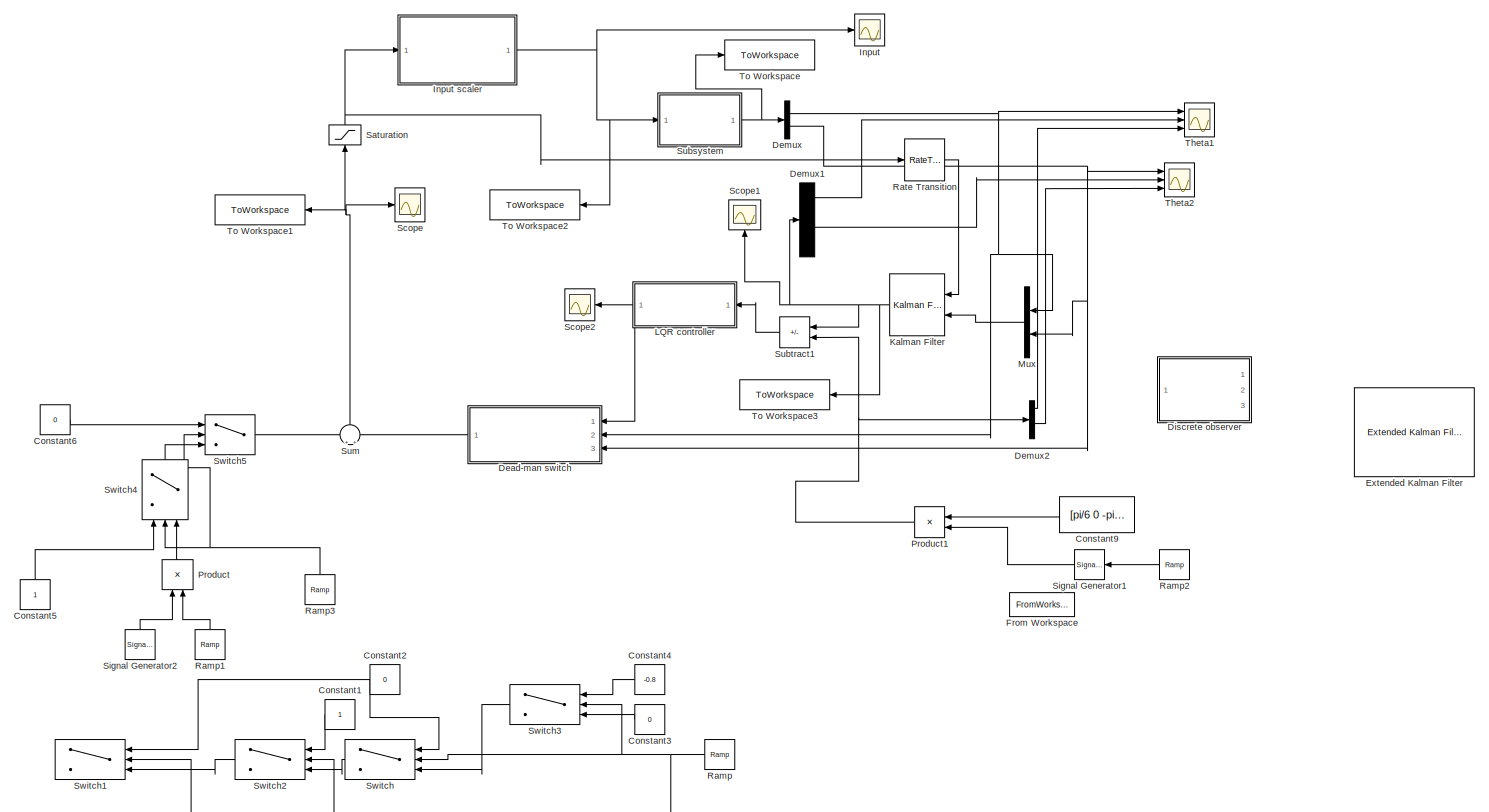
[diagram: root canvas - part 1/1, most of the canvas]
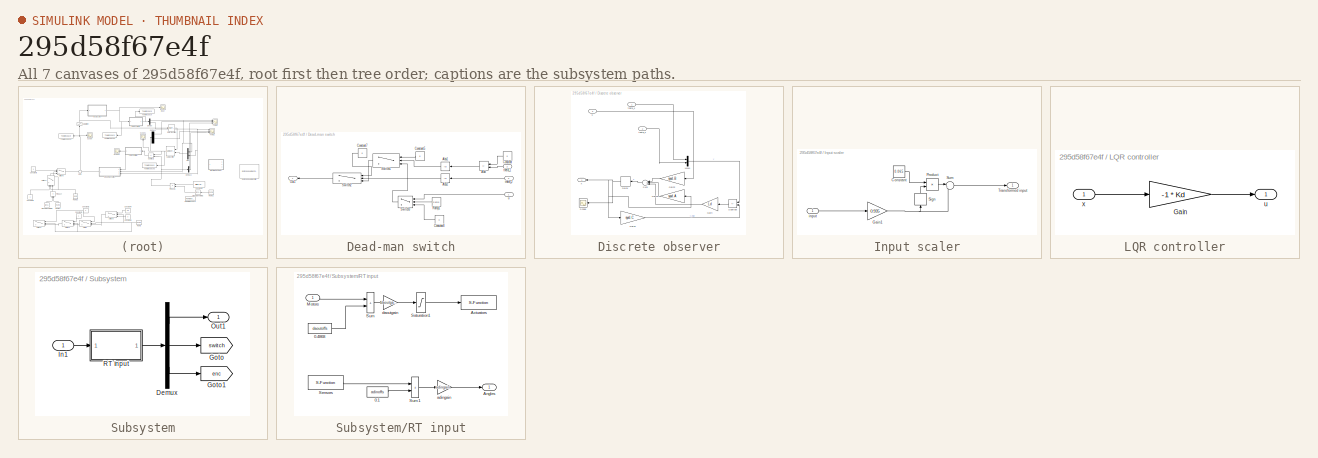
[diagram: thumbnail index - all 7 canvases of the model, root first then tree order]
MODEL slx_295d58f67e4f
KIND model
CONFIG AbsTol = auto
CONFIG EnableMultiTasking = on
CONFIG FixedStep = auto
CONFIG MaxStep = auto
CONFIG MinStep = auto
CONFIG RelTol = 1e-3
CONFIG SampleTimeConstraint = Unconstrained
CONFIG SolverName = ode45
CONFIG StartTime = 0.0
CONFIG StopTime = 30
BLOCK [Constant] Constant1
  Commented = on
  NameLocation = top
BLOCK [Constant] Constant2
  Commented = on
  NameLocation = top
  Value = 0
BLOCK [Constant] Constant3
  Commented = on
  NameLocation = top
  Value = 0
BLOCK [Constant] Constant4
  Commented = on
  NameLocation = top
  Value = -0.8
BLOCK [Constant] Constant5
  NameLocation = right
BLOCK [Constant] Constant6
  Value = 0
BLOCK [Constant] Constant9
  NameLocation = top
  Value = [pi/6 0 -pi/6 0]
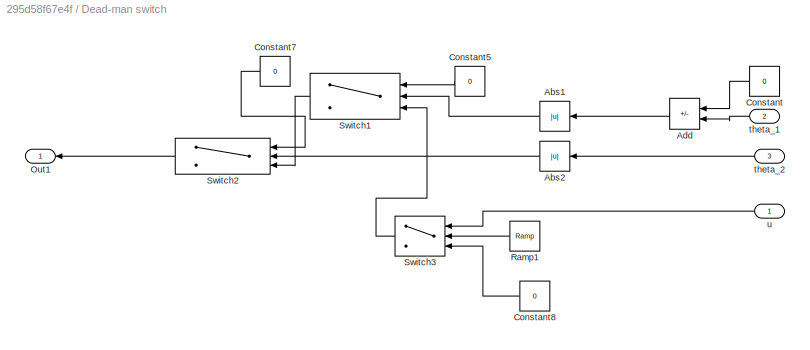
BLOCK [SubSystem] Dead-man switch
  NameLocation = top
  Ports = [3, 1]
  RequestExecContextInheritance = off
BLOCK [Abs] Dead-man switch/Abs1
  NameLocation = top
  SaturateOnIntegerOverflow = off
BLOCK [Abs] Dead-man switch/Abs2
  NameLocation = top
  SaturateOnIntegerOverflow = off
BLOCK [Sum] Dead-man switch/Add
  IconShape = rectangular
  Inputs = -+
  NameLocation = top
  Ports = [2, 1]
BLOCK [Constant] Dead-man switch/Constant
  NameLocation = top
  Value = 0
BLOCK [Constant] Dead-man switch/Constant5
  NameLocation = top
  Value = 0
BLOCK [Constant] Dead-man switch/Constant7
  NameLocation = top
  Value = 0
BLOCK [Constant] Dead-man switch/Constant8
  NameLocation = top
  Value = 0
BLOCK [Outport] Dead-man switch/Out1
  NameLocation = top
BLOCK [Reference] Dead-man switch/Ramp1  REF=simulink/Sources/Ramp
  NameLocation = top
  Ports = [0, 1]
  SourceBlock = simulink/Sources/Ramp
  SourceProductBaseCode = SL
  SourceType = Ramp
BLOCK [Switch] Dead-man switch/Switch1
  Criteria = u2 > Threshold
  InputSameDT = off
  NameLocation = top
  SaturateOnIntegerOverflow = off
  Threshold = pi/2
BLOCK [Switch] Dead-man switch/Switch2
  Criteria = u2 > Threshold
  InputSameDT = off
  NameLocation = top
  SaturateOnIntegerOverflow = off
  Threshold = pi/2
BLOCK [Switch] Dead-man switch/Switch3
  Criteria = u2 > Threshold
  InputSameDT = off
  NameLocation = top
  SaturateOnIntegerOverflow = off
  Threshold = 3
BLOCK [Inport] Dead-man switch/theta_1
  Port = 2
BLOCK [Inport] Dead-man switch/theta_2
  Port = 3
BLOCK [Inport] Dead-man switch/u
BLOCK [Demux] Demux
  Outputs = 2
  Ports = [1, 2]
BLOCK [Demux] Demux1
  Ports = [1, 4]
BLOCK [Demux] Demux2
  Ports = [1, 4]
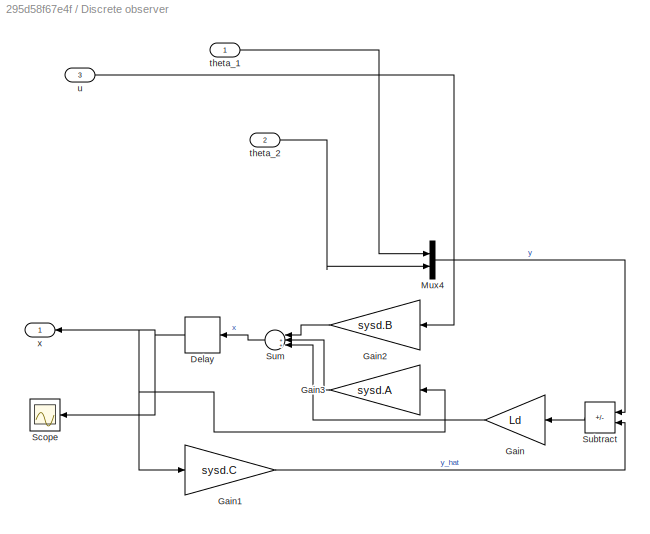
BLOCK [SubSystem] Discrete observer
  Commented = on
  NameLocation = top
  Ports = [3, 1]
  RequestExecContextInheritance = off
BLOCK [Delay] Discrete observer/Delay
  DelayLength = 1
  InputPortMap = u0
  NameLocation = top
  Ports = [1, 1]
BLOCK [Gain] Discrete observer/Gain
  Gain = Ld
  Multiplication = Matrix(K*u) (u vector)
  NameLocation = top
BLOCK [Gain] Discrete observer/Gain1
  Gain = sysd.C
  Multiplication = Matrix(K*u) (u vector)
BLOCK [Gain] Discrete observer/Gain2
  Gain = sysd.B
  Multiplication = Matrix(K*u) (u vector)
  NameLocation = top
BLOCK [Gain] Discrete observer/Gain3
  Gain = sysd.A
  Multiplication = Matrix(K*u) (u vector)
  NameLocation = top
BLOCK [Mux] Discrete observer/Mux4
  DisplayOption = bar
  Inputs = 2
  Ports = [2, 1]
BLOCK [Scope] Discrete observer/Scope
  Floating = off
  NameLocation = top
  NumInputPorts = 1
  Ports = [1]
  ScopeSpecificationString = Simulink.scopes.TimeScopeBlockCfg('CurrentConfiguration', extmgr.ConfigurationSet(extmgr.Configuration('Core','General UI',true),extmgr.Configuration('Core','Source UI',true),extmgr.Configuration('Sources','WiredSimulink',true,'DataLoggingVariableName','ScopeData3'),extmgr.Configuration('Visuals','Time Domain',true,'SerializedDisplays',{struct('MinYLimReal','-0.78894','MaxYLimReal','0.56102','YLab...<+1467ch>
BLOCK [Sum] Discrete observer/Subtract
  IconShape = rectangular
  Inputs = +-
  NameLocation = top
  Ports = [2, 1]
BLOCK [Sum] Discrete observer/Sum
  Inputs = |+++
  NameLocation = top
  Ports = [3, 1]
BLOCK [Inport] Discrete observer/theta_1
BLOCK [Inport] Discrete observer/theta_2
  Port = 2
BLOCK [Inport] Discrete observer/u
  Port = 3
BLOCK [Outport] Discrete observer/x
BLOCK [Reference] Extended Kalman Filter  REF=sharedTrackingLibrary/Extended Kalman Filter
  Commented = on
  NameLocation = top
  Ports = [2, 1]
  SourceBlock = sharedTrackingLibrary/Extended Kalman Filter
  SourceProductBaseCode = CT,DR,TF,ID,LP,NV,AR,RO,RR,UV,VE
  SourceType = Extended Kalman Filter
BLOCK [FromWorkspace] From Workspace
  NameLocation = top
  VariableName = ref
BLOCK [Scope] Input
  Floating = off
  NumInputPorts = 1
  Ports = [1]
  ScopeSpecificationString = Simulink.scopes.TimeScopeBlockCfg('CurrentConfiguration', extmgr.ConfigurationSet(extmgr.Configuration('Core','General UI',true),extmgr.Configuration('Core','Source UI',true),extmgr.Configuration('Sources','WiredSimulink',true,'DataLoggingSaveFormat','StructureWithTime','DataLoggingDecimation','1','DataLoggingDecimateData',true),extmgr.Configuration('Visuals','Time Domain',true,'SerializedDisplays...<+1772ch>
BLOCK [SubSystem] Input scaler
  Ports = [1, 1]
  RequestExecContextInheritance = off
BLOCK [Constant] Input scaler/Constant
  Value = 0.065
BLOCK [Gain] Input scaler/Gain1
  Gain = 0.935
BLOCK [Product] Input scaler/Product
  Ports = [2, 1]
BLOCK [Signum] Input scaler/Sign
  NameLocation = right
BLOCK [Sum] Input scaler/Sum
  Inputs = |++
  Ports = [2, 1]
BLOCK [Outport] Input scaler/Transformed input
BLOCK [Inport] Input scaler/input
  NameLocation = top
BLOCK [Reference] Kalman Filter  REF=ctrlSharedLib/Kalman Filter
  NameLocation = top
  Ports = [2, 1]
  SourceBlock = ctrlSharedLib/Kalman Filter
  SourceProductBaseCode = CT,ID
  SourceType = ctrlKalmanFilter
BLOCK [SubSystem] LQR controller
  Ports = [1, 1]
  RequestExecContextInheritance = off
BLOCK [Gain] LQR controller/Gain
  Gain = -1 * Kd
  Multiplication = Matrix(K*u) (u vector)
BLOCK [Outport] LQR controller/u
BLOCK [Inport] LQR controller/x
BLOCK [Mux] Mux
  DisplayOption = bar
  Inputs = 2
  NameLocation = top
  Ports = [2, 1]
BLOCK [Product] Product
  NameLocation = right
  Ports = [2, 1]
BLOCK [Product] Product1
  NameLocation = top
  Ports = [2, 1]
BLOCK [Reference] Ramp  REF=simulink/Sources/Ramp
  Commented = on
  NameLocation = top
  Ports = [0, 1]
  SourceBlock = simulink/Sources/Ramp
  SourceProductBaseCode = SL
  SourceType = Ramp
BLOCK [Reference] Ramp1  REF=simulink/Sources/Ramp
  NameLocation = right
  Ports = [0, 1]
  SourceBlock = simulink/Sources/Ramp
  SourceProductBaseCode = SL
  SourceType = Ramp
BLOCK [Reference] Ramp2  REF=simulink/Sources/Ramp
  NameLocation = top
  Ports = [0, 1]
  SourceBlock = simulink/Sources/Ramp
  SourceProductBaseCode = SL
  SourceType = Ramp
BLOCK [Reference] Ramp3  REF=simulink/Sources/Ramp
  NameLocation = right
  Ports = [0, 1]
  SourceBlock = simulink/Sources/Ramp
  SourceProductBaseCode = SL
  SourceType = Ramp
BLOCK [RateTransition] Rate Transition
  OutPortSampleTime = h
BLOCK [Saturate] Saturation
  LowerLimit = -1
  NameLocation = right
  UpperLimit = 1
BLOCK [Scope] Scope
  Floating = off
  NumInputPorts = 1
  Ports = [1]
  ScopeSpecificationString = Simulink.scopes.TimeScopeBlockCfg('CurrentConfiguration', extmgr.ConfigurationSet(extmgr.Configuration('Core','General UI',true),extmgr.Configuration('Core','Source UI',true),extmgr.Configuration('Sources','WiredSimulink',true,'DataLoggingVariableName','ScopeData1'),extmgr.Configuration('Visuals','Time Domain',true,'SerializedDisplays',{struct('MinYLimReal','-1.31264','MaxYLimReal','3.68303','YLab...<+1552ch>
BLOCK [Scope] Scope1
  Floating = off
  NameLocation = right
  NumInputPorts = 1
  Ports = [1]
  ScopeSpecificationString = Simulink.scopes.TimeScopeBlockCfg('CurrentConfiguration', extmgr.ConfigurationSet(extmgr.Configuration('Core','General UI',true),extmgr.Configuration('Core','Source UI',true),extmgr.Configuration('Sources','WiredSimulink',true,'DataLoggingVariableName','ScopeData1'),extmgr.Configuration('Visuals','Time Domain',true,'SerializedDisplays',{struct('MinYLimReal','-13.68891','MaxYLimReal','11.97933','YL...<+1529ch>
BLOCK [Scope] Scope2
  Floating = off
  NameLocation = top
  NumInputPorts = 1
  Ports = [1]
  ScopeSpecificationString = Simulink.scopes.TimeScopeBlockCfg('CurrentConfiguration', extmgr.ConfigurationSet(extmgr.Configuration('Core','General UI',true),extmgr.Configuration('Core','Source UI',true),extmgr.Configuration('Sources','WiredSimulink',true,'DataLoggingVariableName','ScopeData1'),extmgr.Configuration('Visuals','Time Domain',true,'SerializedDisplays',{struct('MinYLimReal','-2.35599','MaxYLimReal','2.7548','YLabe...<+1440ch>
BLOCK [SignalGenerator] Signal Generator1
  Amplitude = 0
  Frequency = 0.1
  NameLocation = top
  Ports = [1, 1]
  TimeSource = Use external signal
BLOCK [SignalGenerator] Signal Generator2
  Frequency = 1.15
  NameLocation = right
  Ports = [0, 1]
BLOCK [SubSystem] Subsystem
  Ports = [1, 1]
  RequestExecContextInheritance = off
BLOCK [Demux] Subsystem/Demux
  Outputs = [2 4 1]
  Ports = [1, 3]
BLOCK [Goto] Subsystem/Goto
  GotoTag = switch
  TagVisibility = global
BLOCK [Goto] Subsystem/Goto1
  GotoTag = enc
  TagVisibility = global
BLOCK [Inport] Subsystem/In1
BLOCK [Outport] Subsystem/Out1
BLOCK [SubSystem] Subsystem/RT input
  Ports = [1, 1]
  RequestExecContextInheritance = off
BLOCK [Constant] Subsystem/RT input/0.1
  Value = adinoffs
BLOCK [Constant] Subsystem/RT input/0.4868
  Value = daoutoffs
BLOCK [S-Function] Subsystem/RT input/Actuators
  EnableBusSupport = off
  FunctionName = sfusbout
  Parameters = Ts, fugihandle
  Ports = [1]
  SFcnIsStateOwnerBlock = off
  SFunctionDeploymentMode = off
BLOCK [Outport] Subsystem/RT input/Angles
BLOCK [Inport] Subsystem/RT input/Motors
BLOCK [Saturate] Subsystem/RT input/Saturation1
  LowerLimit = -10
  UpperLimit = 10
BLOCK [S-Function] Subsystem/RT input/Sensors
  EnableBusSupport = off
  FunctionName = sfusbin
  Parameters = Ts, fugihandle, channels
  Ports = [0, 1]
  SFcnIsStateOwnerBlock = off
  SFunctionDeploymentMode = off
BLOCK [Sum] Subsystem/RT input/Sum
  IconShape = rectangular
  InputSameDT = on
  OutDataTypeStr = Inherit: Same as first input
  Ports = [2, 1]
  SaturateOnIntegerOverflow = on
BLOCK [Sum] Subsystem/RT input/Sum1
  IconShape = rectangular
  InputSameDT = on
  OutDataTypeStr = Inherit: Same as first input
  Ports = [2, 1]
  SaturateOnIntegerOverflow = on
BLOCK [Gain] Subsystem/RT input/adingain
  Gain = adingain
  OutDataTypeStr = Inherit: Same as input
  ParamDataTypeStr = Inherit: Same as input
  SaturateOnIntegerOverflow = on
BLOCK [Gain] Subsystem/RT input/daoutgain
  Gain = daoutgain
  OutDataTypeStr = Inherit: Same as input
  ParamDataTypeStr = Inherit: Same as input
  SaturateOnIntegerOverflow = on
BLOCK [Sum] Subtract1
  IconShape = rectangular
  Inputs = +-
  NameLocation = top
  Ports = [2, 1]
BLOCK [Sum] Sum
  Inputs = +|+
  NameLocation = right
  Ports = [2, 1]
BLOCK [Switch] Switch
  Commented = on
  Criteria = u2 > Threshold
  InputSameDT = off
  NameLocation = top
  SaturateOnIntegerOverflow = off
  Threshold = 2.25
BLOCK [Switch] Switch1
  Commented = on
  Criteria = u2 > Threshold
  InputSameDT = off
  NameLocation = top
  SaturateOnIntegerOverflow = off
  Threshold = 2.75
BLOCK [Switch] Switch2
  Commented = on
  Criteria = u2 > Threshold
  InputSameDT = off
  NameLocation = top
  SaturateOnIntegerOverflow = off
  Threshold = 2.30
BLOCK [Switch] Switch3
  Commented = on
  Criteria = u2 > Threshold
  InputSameDT = off
  NameLocation = top
  SaturateOnIntegerOverflow = off
  Threshold = 2
BLOCK [Switch] Switch4
  Criteria = u2 > Threshold
  InputSameDT = off
  NameLocation = right
  SaturateOnIntegerOverflow = off
  Threshold = 3.66
BLOCK [Switch] Switch5
  Criteria = u2 > Threshold
  InputSameDT = off
  SaturateOnIntegerOverflow = off
BLOCK [Scope] Theta1
  Floating = off
  NumInputPorts = 3
  Ports = [3]
  ScopeSpecificationString = Simulink.scopes.TimeScopeBlockCfg('CurrentConfiguration', extmgr.ConfigurationSet(extmgr.Configuration('Core','General UI',true),extmgr.Configuration('Core','Source UI',true),extmgr.Configuration('Sources','WiredSimulink',true,'DataLoggingVariableName','ScopeData1','DataLoggingSaveFormat','StructureWithTime','DataLoggingDecimation','1','DataLoggingDecimateData',true),extmgr.Configuration('Visuals'...<+1735ch>
BLOCK [Scope] Theta2
  Floating = off
  NumInputPorts = 3
  Ports = [3]
  ScopeSpecificationString = Simulink.scopes.TimeScopeBlockCfg('CurrentConfiguration', extmgr.ConfigurationSet(extmgr.Configuration('Core','General UI',true),extmgr.Configuration('Core','Source UI',true),extmgr.Configuration('Sources','WiredSimulink',true,'DataLoggingVariableName','ScopeData2','DataLoggingSaveFormat','StructureWithTime','DataLoggingDecimation','1','DataLoggingDecimateData',true),extmgr.Configuration('Visuals'...<+1737ch>
BLOCK [ToWorkspace] To Workspace
  FixptAsFi = on
  MaxDataPoints = inf
  Ports = [1]
  SampleTime = -1
  SaveFormat = Timeseries
  VariableName = angles_raw
BLOCK [ToWorkspace] To Workspace1
  FixptAsFi = on
  MaxDataPoints = inf
  NameLocation = top
  Ports = [1]
  SampleTime = -1
  SaveFormat = Timeseries
  VariableName = Input
BLOCK [ToWorkspace] To Workspace2
  FixptAsFi = on
  MaxDataPoints = inf
  NameLocation = top
  Ports = [1]
  SampleTime = -1
  SaveFormat = Timeseries
  VariableName = InputDigital
BLOCK [ToWorkspace] To Workspace3
  FixptAsFi = on
  MaxDataPoints = inf
  NameLocation = top
  Ports = [1]
  SampleTime = -1
  SaveFormat = Timeseries
  VariableName = observer
LINE Constant1:1 -> Switch2:1
NET Constant2:1 -> Switch1:1, Switch:1
LINE Constant3:1 -> Switch3:3
LINE Constant4:1 -> Switch3:1
LINE Constant5:1 -> Switch4:1
LINE Constant6:1 -> Switch5:1
LINE Constant9:1 -> Product1:1
LINE Dead-man switch/Abs1:1 -> Dead-man switch/Switch1:2
LINE Dead-man switch/Abs2:1 -> Dead-man switch/Switch2:2
LINE Dead-man switch/Add:1 -> Dead-man switch/Abs1:1
LINE Dead-man switch/Constant5:1 -> Dead-man switch/Switch1:1
LINE Dead-man switch/Constant7:1 -> Dead-man switch/Switch2:1
LINE Dead-man switch/Constant8:1 -> Dead-man switch/Switch3:3
LINE Dead-man switch/Constant:1 -> Dead-man switch/Add:1
LINE Dead-man switch/Ramp1:1 -> Dead-man switch/Switch3:2
LINE Dead-man switch/Switch1:1 -> Dead-man switch/Switch2:3
LINE Dead-man switch/Switch2:1 -> Dead-man switch/Out1:1
LINE Dead-man switch/Switch3:1 -> Dead-man switch/Switch1:3
LINE Dead-man switch/theta_1:1 -> Dead-man switch/Add:2
LINE Dead-man switch/theta_2:1 -> Dead-man switch/Abs2:1
LINE Dead-man switch/u:1 -> Dead-man switch/Switch3:1
LINE Dead-man switch:1 -> Sum:2
LINE Demux1:1 -> Theta1:2
LINE Demux1:3 -> Theta2:2
LINE Demux2:1 -> Theta1:3
LINE Demux2:3 -> Theta2:3
NET Demux:1 -> Dead-man switch:2, Mux:1, Theta1:1
NET Demux:2 -> Dead-man switch:3, Mux:2, Theta2:1
NET Discrete observer/Delay:1 -> Discrete observer/Gain1:1, Discrete observer/Gain3:1, Discrete observer/Scope:1, Discrete observer/x:1
LINE Discrete observer/Gain1:1 -> Discrete observer/Subtract:2
LINE Discrete observer/Gain2:1 -> Discrete observer/Sum:1
LINE Discrete observer/Gain3:1 -> Discrete observer/Sum:2
LINE Discrete observer/Gain:1 -> Discrete observer/Sum:3
LINE Discrete observer/Mux4:1 -> Discrete observer/Subtract:1
LINE Discrete observer/Subtract:1 -> Discrete observer/Gain:1
LINE Discrete observer/Sum:1 -> Discrete observer/Delay:1
LINE Discrete observer/theta_1:1 -> Discrete observer/Mux4:1
LINE Discrete observer/theta_2:1 -> Discrete observer/Mux4:2
LINE Discrete observer/u:1 -> Discrete observer/Gain2:1
LINE Input scaler/Constant:1 -> Input scaler/Product:1
NET Input scaler/Gain1:1 -> Input scaler/Sign:1, Input scaler/Sum:2
LINE Input scaler/Product:1 -> Input scaler/Sum:1
LINE Input scaler/Sign:1 -> Input scaler/Product:2
LINE Input scaler/Sum:1 -> Input scaler/Transformed input:1
LINE Input scaler/input:1 -> Input scaler/Gain1:1
NET Input scaler:1 -> Input:1, Subsystem:1, To Workspace2:1
NET Kalman Filter:1 -> Demux1:1, Scope1:1, Subtract1:1, To Workspace3:1
LINE LQR controller/Gain:1 -> LQR controller/u:1
LINE LQR controller/x:1 -> LQR controller/Gain:1
NET LQR controller:1 -> Dead-man switch:1, Scope2:1
LINE Mux:1 -> Kalman Filter:2
NET Product1:1 -> Demux2:1, Subtract1:2
LINE Product:1 -> Switch4:3
LINE Ramp1:1 -> Product:2
LINE Ramp2:1 -> Signal Generator1:1
NET Ramp3:1 -> Switch4:2, Switch5:2
NET Ramp:1 -> Switch1:2, Switch2:2, Switch3:2, Switch:2
LINE Rate Transition:1 -> Kalman Filter:1
NET Saturation:1 -> Input scaler:1, Rate Transition:1
LINE Signal Generator1:1 -> Product1:2
LINE Signal Generator2:1 -> Product:1
LINE Subsystem/Demux:1 -> Subsystem/Out1:1
LINE Subsystem/Demux:2 -> Subsystem/Goto:1
LINE Subsystem/Demux:3 -> Subsystem/Goto1:1
LINE Subsystem/In1:1 -> Subsystem/RT input:1
LINE Subsystem/RT input/0.1:1 -> Subsystem/RT input/Sum1:2
LINE Subsystem/RT input/0.4868:1 -> Subsystem/RT input/Sum:2
LINE Subsystem/RT input/Motors:1 -> Subsystem/RT input/Sum:1
LINE Subsystem/RT input/Saturation1:1 -> Subsystem/RT input/Actuators:1
LINE Subsystem/RT input/Sensors:1 -> Subsystem/RT input/Sum1:1
LINE Subsystem/RT input/Sum1:1 -> Subsystem/RT input/adingain:1
LINE Subsystem/RT input/Sum:1 -> Subsystem/RT input/daoutgain:1
LINE Subsystem/RT input/adingain:1 -> Subsystem/RT input/Angles:1
LINE Subsystem/RT input/daoutgain:1 -> Subsystem/RT input/Saturation1:1
LINE Subsystem/RT input:1 -> Subsystem/Demux:1
NET Subsystem:1 -> Demux:1, To Workspace:1
LINE Subtract1:1 -> LQR controller:1
NET Sum:1 -> Saturation:1, Scope:1, To Workspace1:1
LINE Switch2:1 -> Switch1:3
LINE Switch3:1 -> Switch:3
LINE Switch4:1 -> Switch5:3
LINE Switch5:1 -> Sum:1
LINE Switch:1 -> Switch2:3
note: NET lines group one-source signal fan-out (src -> all destinations, sorted); 1:1 wires keep LINE
